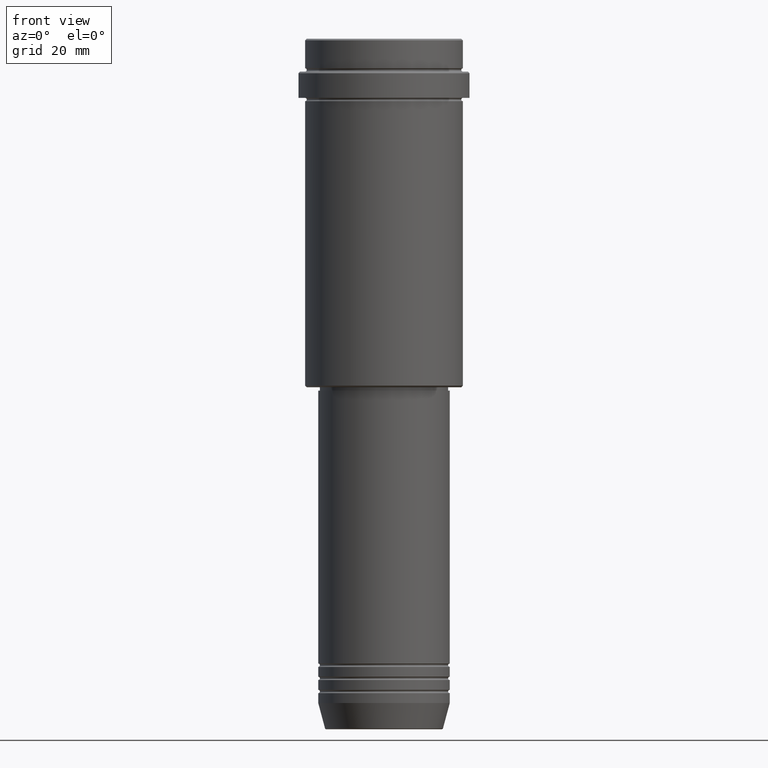
[diagram: clean part render]
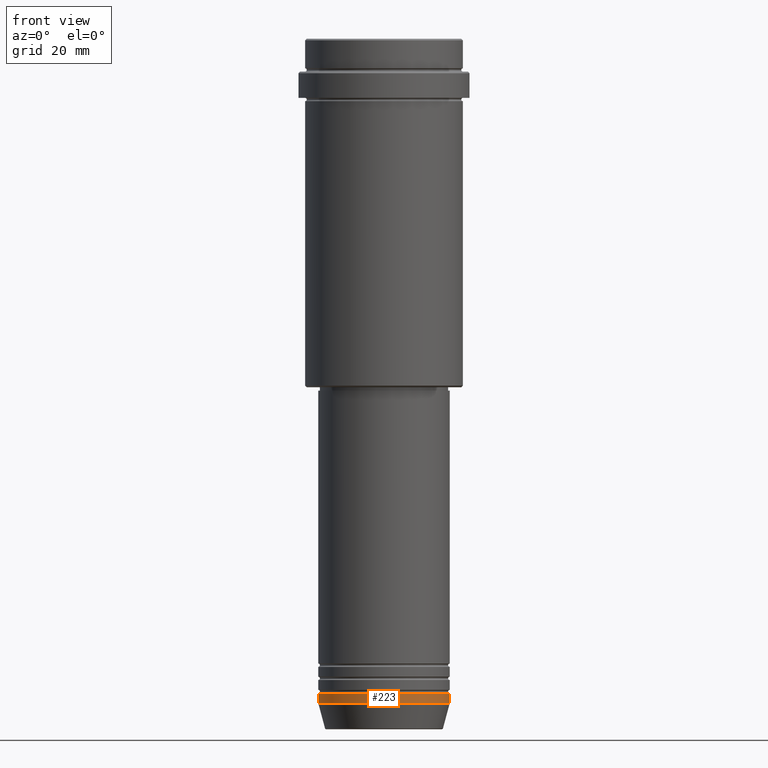
[diagram: same view with one face highlighted and labeled with its STEP entity id]
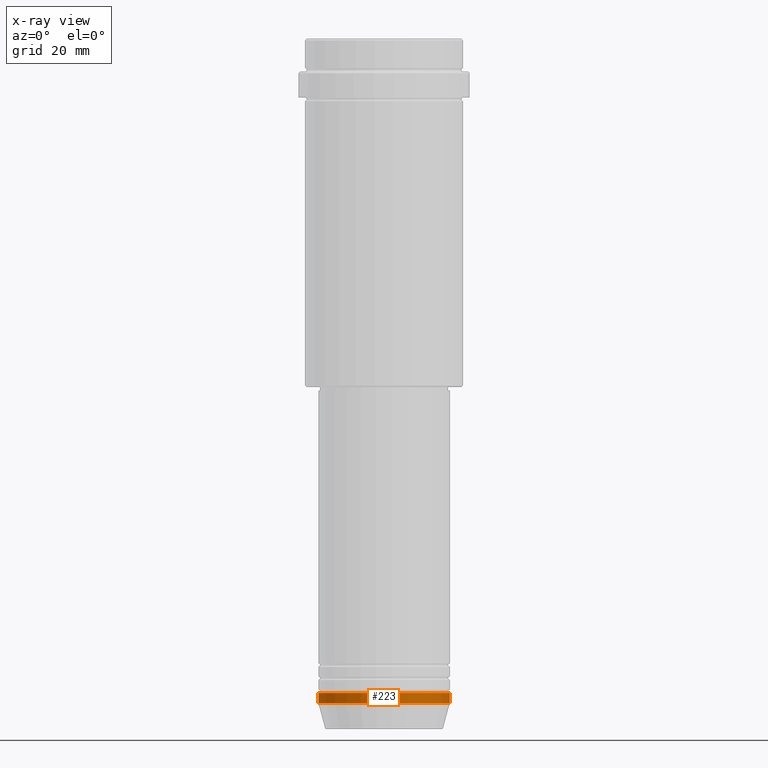
[diagram: x-ray of the same camera — body ghosted, the highlighted face saturated]
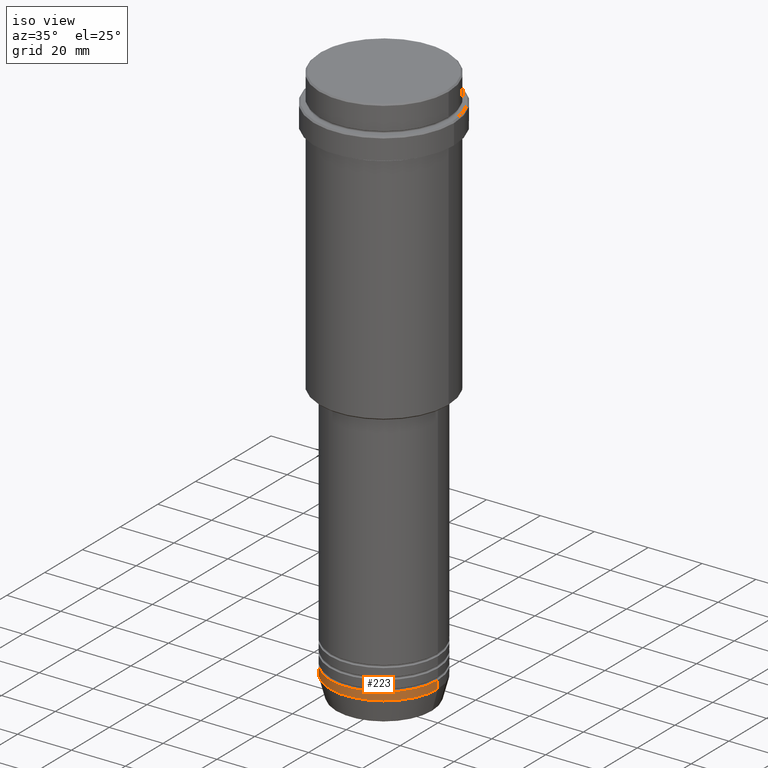
[diagram: same view with one face highlighted and labeled with its STEP entity id]
A machine part, front view. The second image highlights one B-rep face of the part: STEP entity #223.
The next image is the same camera in x-ray: the body ghosted, the highlighted face saturated — about 0% of this face is hidden behind the body in this view.
A second angle (iso view) of the same face is appended — the face is thin or edge-on in the first view.
In plain terms, the highlighted cylindrical surface (partial cylindrical patch) has radius 20 mm, axis along (-0, -0, 1).
Its self-contained STEP definition (entity closure, byte-faithful):
#5 = AXIS2_PLACEMENT_3D ( 'NONE', #374, #580, #498 ) ;
#20 = CARTESIAN_POINT ( 'NONE',  ( 20.00000000000000000, 0.000000000000000000, -199.0000000000000000 ) ) ;
#38 = CARTESIAN_POINT ( 'NONE',  ( 20.00000000000000000, 0.000000000000000000, 0.000000000000000000 ) ) ;
#54 = DIRECTION ( 'NONE',  ( 1.000000000000000000, 0.000000000000000000, 0.000000000000000000 ) ) ;
#94 = ORIENTED_EDGE ( 'NONE', *, *, #974, .F. ) ;
#120 = AXIS2_PLACEMENT_3D ( 'NONE', #1071, #622, #532 ) ;
#188 = EDGE_CURVE ( 'NONE', #1404, #1052, #1143, .T. ) ;
#217 = VERTEX_POINT ( 'NONE', #504 ) ;
#223 = ADVANCED_FACE ( 'NONE', ( #1021 ), #799, .T. ) ;
#233 = EDGE_CURVE ( 'NONE', #217, #1404, #878, .T. ) ;
#259 = CARTESIAN_POINT ( 'NONE',  ( 0.000000000000000000, 0.000000000000000000, 0.000000000000000000 ) ) ;
#295 = VERTEX_POINT ( 'NONE', #1407 ) ;
#300 = EDGE_CURVE ( 'NONE', #295, #1052, #1386, .T. ) ;
#374 = CARTESIAN_POINT ( 'NONE',  ( 0.000000000000000000, 0.000000000000000000, -202.0000000000000000 ) ) ;
#383 = VECTOR ( 'NONE', #1297, 1000.000000000000000 ) ;
#430 = LINE ( 'NONE', #865, #383 ) ;
#498 = DIRECTION ( 'NONE',  ( 1.000000000000000000, 0.000000000000000000, 0.000000000000000000 ) ) ;
#504 = CARTESIAN_POINT ( 'NONE',  ( -20.00000000000000000, 2.449293598294706513E-15, -202.0000000000000000 ) ) ;
#532 = DIRECTION ( 'NONE',  ( 1.000000000000000000, 0.000000000000000000, 0.000000000000000000 ) ) ;
#580 = DIRECTION ( 'NONE',  ( -0.000000000000000000, -0.000000000000000000, 1.000000000000000000 ) ) ;
#622 = DIRECTION ( 'NONE',  ( -0.000000000000000000, -0.000000000000000000, 1.000000000000000000 ) ) ;
#691 = DIRECTION ( 'NONE',  ( -0.000000000000000000, -0.000000000000000000, 1.000000000000000000 ) ) ;
#701 = DIRECTION ( 'NONE',  ( -0.000000000000000000, -0.000000000000000000, 1.000000000000000000 ) ) ;
#788 = VECTOR ( 'NONE', #701, 1000.000000000000000 ) ;
#799 = CYLINDRICAL_SURFACE ( 'NONE', #1172, 20.00000000000000000 ) ;
#865 = CARTESIAN_POINT ( 'NONE',  ( -20.00000000000000000, 2.449293598294706513E-15, 0.000000000000000000 ) ) ;
#878 = CIRCLE ( 'NONE', #5, 20.00000000000000000 ) ;
#968 = ORIENTED_EDGE ( 'NONE', *, *, #300, .F. ) ;
#974 = EDGE_CURVE ( 'NONE', #217, #295, #430, .T. ) ;
#1021 = FACE_OUTER_BOUND ( 'NONE', #1047, .T. ) ;
#1047 = EDGE_LOOP ( 'NONE', ( #94, #1387, #1294, #968 ) ) ;
#1052 = VERTEX_POINT ( 'NONE', #20 ) ;
#1071 = CARTESIAN_POINT ( 'NONE',  ( 0.000000000000000000, 0.000000000000000000, -199.0000000000000000 ) ) ;
#1143 = LINE ( 'NONE', #38, #788 ) ;
#1172 = AXIS2_PLACEMENT_3D ( 'NONE', #259, #691, #54 ) ;
#1200 = CARTESIAN_POINT ( 'NONE',  ( 20.00000000000000000, 0.000000000000000000, -202.0000000000000000 ) ) ;
#1294 = ORIENTED_EDGE ( 'NONE', *, *, #188, .T. ) ;
#1297 = DIRECTION ( 'NONE',  ( -0.000000000000000000, -0.000000000000000000, 1.000000000000000000 ) ) ;
#1386 = CIRCLE ( 'NONE', #120, 20.00000000000000000 ) ;
#1387 = ORIENTED_EDGE ( 'NONE', *, *, #233, .T. ) ;
#1404 = VERTEX_POINT ( 'NONE', #1200 ) ;
#1407 = CARTESIAN_POINT ( 'NONE',  ( -20.00000000000000000, 2.449293598294706513E-15, -199.0000000000000000 ) ) ;